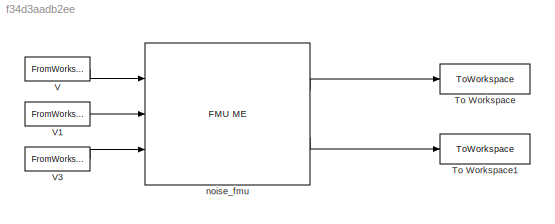
MODEL slx_f34d3aadb2ee
KIND model
CONFIG AbsTol = auto
CONFIG EnableMultiTasking = off
CONFIG FixedStep = 0.005
CONFIG MaxStep = auto
CONFIG MinStep = auto
CONFIG RelTol = 1e-2
CONFIG SampleTimeConstraint = Unconstrained
CONFIG Solver = VariableStepAuto
CONFIG SolverName = VariableStepAuto
CONFIG StartTime = 0.0
CONFIG StopTime = 16.5
BLOCK [ToWorkspace] To Workspace
  FixptAsFi = on
  MaxDataPoints = inf
  Ports = [1]
  SampleTime = -1
  SaveFormat = Timeseries
  VariableName = Pout
BLOCK [ToWorkspace] To Workspace1
  FixptAsFi = on
  MaxDataPoints = inf
  Ports = [1]
  SampleTime = -1
  SaveFormat = Timeseries
  VariableName = Qout
BLOCK [FromWorkspace] V
  VariableName = r1
BLOCK [FromWorkspace] V1
  VariableName = r2
BLOCK [FromWorkspace] V3
  VariableName = r3
BLOCK [Reference] noise_fmu  REF=fmu_me_lib/FMU ME
  Description = Simulates an FMU for Model Exchange 1.0 or Model Exchange 2.0.
  Ports = [3, 2]
  SourceBlock = fmu_me_lib/FMU ME
  UserDataPersistent = on
LINE V1:1 -> noise_fmu:2
LINE V3:1 -> noise_fmu:3
LINE V:1 -> noise_fmu:1
LINE noise_fmu:1 -> To Workspace:1
LINE noise_fmu:2 -> To Workspace1:1
